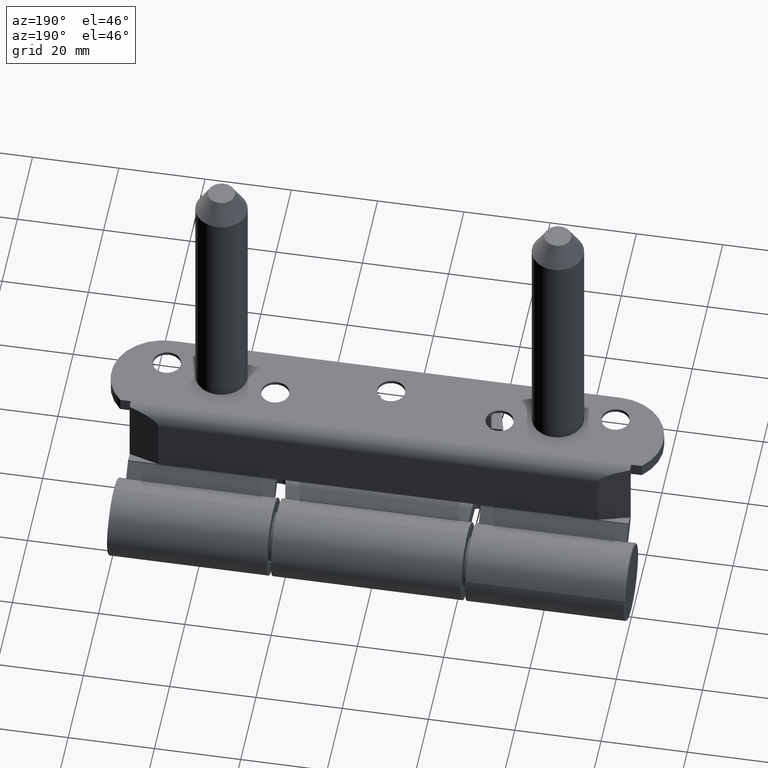
[diagram: clean part render]
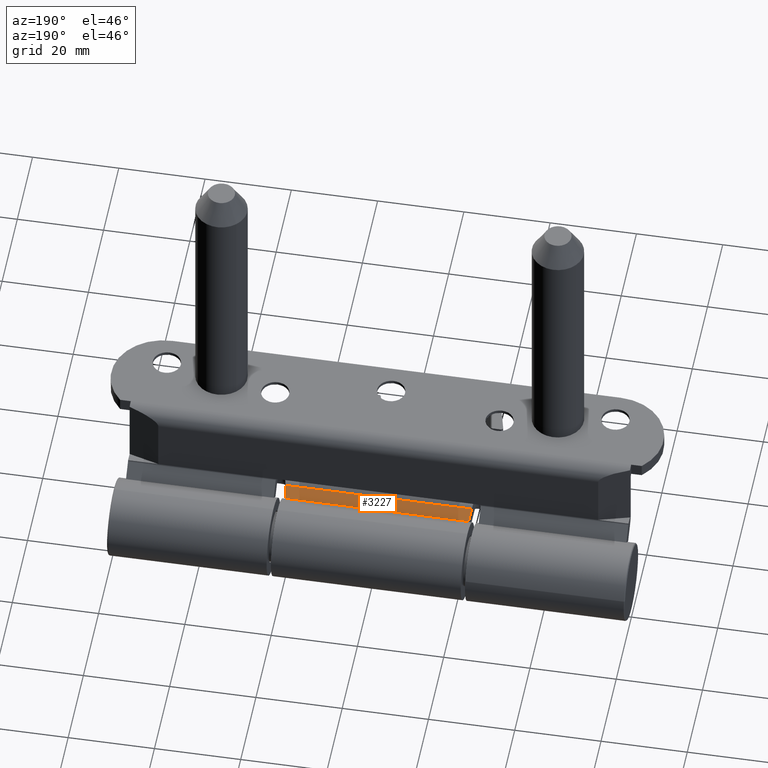
[diagram: same view with one face highlighted and labeled with its STEP entity id]
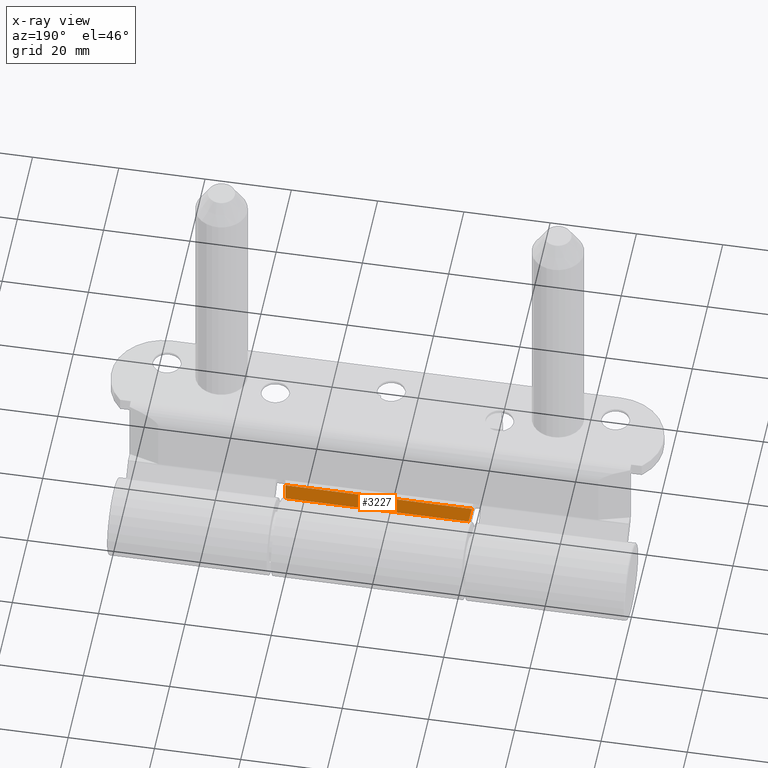
[diagram: x-ray of the same camera — body ghosted, the highlighted face saturated]
A machine part, auxiliary view. The second image highlights one B-rep face of the part: STEP entity #3227.
The next image is the same camera in x-ray: the body ghosted, the highlighted face saturated — about 0% of this face is hidden behind the body in this view.
In plain terms, the highlighted planar face has unit normal (-0, -0.6698, -0.7426).
Its self-contained STEP definition (entity closure, byte-faithful):
#87 = VECTOR ( 'NONE', #14148, 1000.000000000000000 ) ;
#409 = LINE ( 'NONE', #4398, #87 ) ;
#458 = DIRECTION ( 'NONE',  ( -0.7425531167507185559, -0.6697871817255042215, -1.355854680848612727E-31 ) ) ;
#767 = VERTEX_POINT ( 'NONE', #7748 ) ;
#1562 = LINE ( 'NONE', #16949, #3893 ) ;
#2002 = ORIENTED_EDGE ( 'NONE', *, *, #14609, .T. ) ;
#2521 = CARTESIAN_POINT ( 'NONE',  ( -7.847930449635076577, -9.098935907957734770, 7.203497647457049347 ) ) ;
#2727 = VECTOR ( 'NONE', #6932, 1000.000000000000114 ) ;
#3227 = ADVANCED_FACE ( 'NONE', ( #11663 ), #4361, .F. ) ;
#3342 = B_SPLINE_CURVE_WITH_KNOTS ( 'NONE', 3,
 ( #6691, #2521, #12248, #8067 ),
 .UNSPECIFIED., .F., .F.,
 ( 4, 4 ),
 ( 0.000000000000000000, 1.000000000000000000 ),
 .UNSPECIFIED. ) ;
#3372 = VERTEX_POINT ( 'NONE', #6629 ) ;
#3893 = VECTOR ( 'NONE', #14204, 999.9999999999998863 ) ;
#4361 = PLANE ( 'NONE',  #6443 ) ;
#4398 = CARTESIAN_POINT ( 'NONE',  ( -5.678297278425665340, -7.141914309985820886, 42.00000000000000000 ) ) ;
#4804 = EDGE_CURVE ( 'NONE', #3372, #15583, #3342, .T. ) ;
#5825 = ORIENTED_EDGE ( 'NONE', *, *, #11184, .F. ) ;
#6443 = AXIS2_PLACEMENT_3D ( 'NONE', #17032, #16942, #458 ) ;
#6629 = CARTESIAN_POINT ( 'NONE',  ( -7.847930449635073025, -9.098935907957729441, 21.61049294259098019 ) ) ;
#6691 = CARTESIAN_POINT ( 'NONE',  ( -7.847930449635073025, -9.098935907957729441, 21.61049294259098019 ) ) ;
#6837 = ORIENTED_EDGE ( 'NONE', *, *, #4804, .T. ) ;
#6842 = LINE ( 'NONE', #16582, #2727 ) ;
#6932 = DIRECTION ( 'NONE',  ( 0.7369652044776110467, 0.6647468527191275900, 0.1224496189838392285 ) ) ;
#7510 = CARTESIAN_POINT ( 'NONE',  ( -7.847930477380294256, -9.098935933886089344, -21.61049294281068711 ) ) ;
#7618 = EDGE_LOOP ( 'NONE', ( #6837, #2002, #5825, #17235 ) ) ;
#7748 = CARTESIAN_POINT ( 'NONE',  ( -5.678297278425662675, -7.141914309985827991, -21.24999999999999645 ) ) ;
#8067 = CARTESIAN_POINT ( 'NONE',  ( -7.847930477380294256, -9.098935933886089344, -21.61049294281068711 ) ) ;
#11184 = EDGE_CURVE ( 'NONE', #17136, #767, #409, .T. ) ;
#11663 = FACE_OUTER_BOUND ( 'NONE', #7618, .T. ) ;
#12248 = CARTESIAN_POINT ( 'NONE',  ( -7.847930449635076577, -9.098935907957734770, -7.203497647676849525 ) ) ;
#14148 = DIRECTION ( 'NONE',  ( 3.627616306678851279E-32, -2.218671295934096141E-31, -1.000000000000000000 ) ) ;
#14204 = DIRECTION ( 'NONE',  ( -0.7369652044776110467, -0.6647468527191275900, 0.1224496189838392285 ) ) ;
#14316 = EDGE_CURVE ( 'NONE', #17136, #3372, #1562, .T. ) ;
#14609 = EDGE_CURVE ( 'NONE', #15583, #767, #6842, .T. ) ;
#15583 = VERTEX_POINT ( 'NONE', #7510 ) ;
#16023 = CARTESIAN_POINT ( 'NONE',  ( -5.678297278425654682, -7.141914309985831544, 21.25000000000000000 ) ) ;
#16582 = CARTESIAN_POINT ( 'NONE',  ( -2.107649054732986027, -3.921169077448910301, -20.65672298792395978 ) ) ;
#16942 = DIRECTION ( 'NONE',  ( -0.6697871817255043325, 0.7425531167507186669, 1.232595164407829851E-31 ) ) ;
#16949 = CARTESIAN_POINT ( 'NONE',  ( -9.687902168113978973, -10.75860097968665841, 21.91621135982410351 ) ) ;
#17032 = CARTESIAN_POINT ( 'NONE',  ( -7.847930449635074801, -9.098935907957732994, 41.99999999999997868 ) ) ;
#17136 = VERTEX_POINT ( 'NONE', #16023 ) ;
#17235 = ORIENTED_EDGE ( 'NONE', *, *, #14316, .T. ) ;